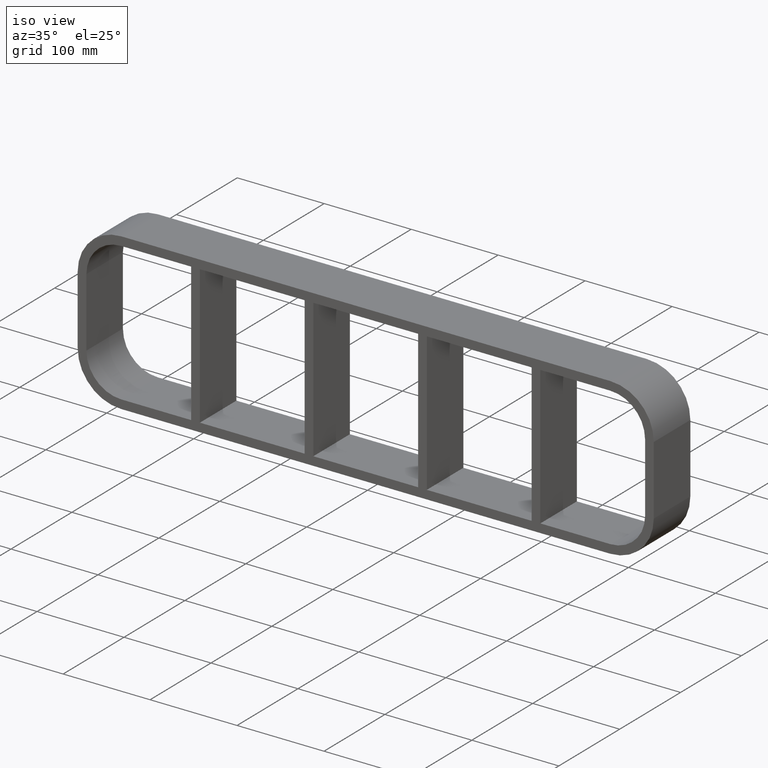
[diagram: clean part render]
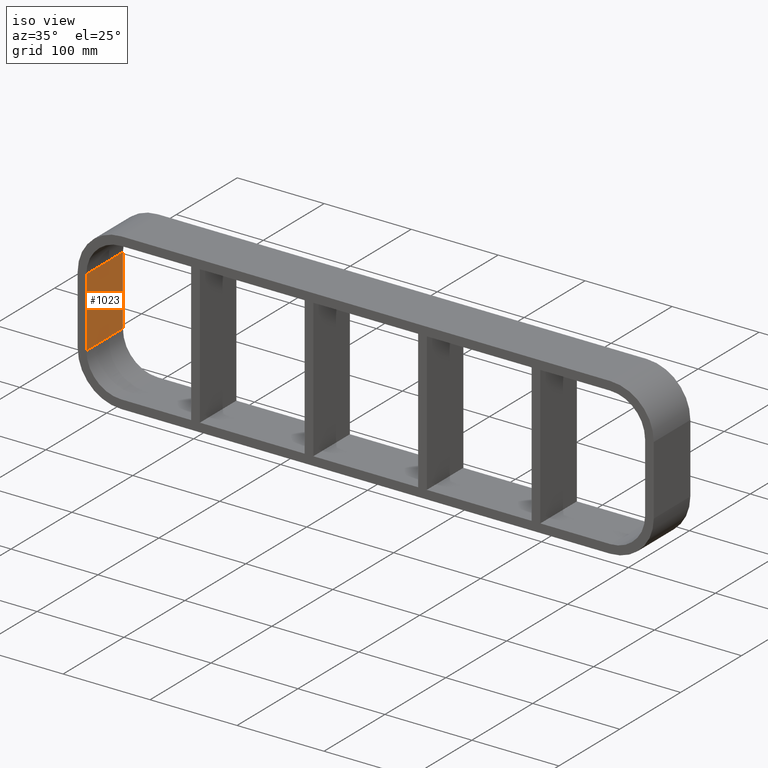
[diagram: same view with one face highlighted and labeled with its STEP entity id]
A machine part, iso view. The second image highlights one B-rep face of the part: STEP entity #1023.
In plain terms, the highlighted planar face has unit normal (-1, 0, 0).
Its self-contained STEP definition (entity closure, byte-faithful):
#770=CARTESIAN_POINT('',(-321.25,-3.0,-39.750000000000014));
#771=VERTEX_POINT('',#770);
#779=CARTESIAN_POINT('',(-321.25,-3.0,39.750000000000014));
#780=VERTEX_POINT('',#779);
#781=CARTESIAN_POINT('',(-321.25,-3.0,-39.750000000000014));
#782=DIRECTION('',(0.0,0.0,1.0));
#783=VECTOR('',#782,79.500000000000028);
#784=LINE('',#781,#783);
#785=EDGE_CURVE('',#771,#780,#784,.T.);
#981=CARTESIAN_POINT('',(-321.25,57.0,39.750000000000014));
#982=VERTEX_POINT('',#981);
#983=CARTESIAN_POINT('',(-321.25,-3.0,39.750000000000014));
#984=DIRECTION('',(0.0,1.0,0.0));
#985=VECTOR('',#984,60.0);
#986=LINE('',#983,#985);
#987=EDGE_CURVE('',#780,#982,#986,.T.);
#1000=CARTESIAN_POINT('',(-321.25,0.0,-79.750000000000014));
#1001=DIRECTION('',(-1.0,0.0,0.0));
#1002=DIRECTION('',(0.0,0.0,1.0));
#1003=AXIS2_PLACEMENT_3D('',#1000,#1001,#1002);
#1004=PLANE('',#1003);
#1005=ORIENTED_EDGE('',*,*,#987,.F.);
#1006=ORIENTED_EDGE('',*,*,#785,.F.);
#1007=CARTESIAN_POINT('',(-321.25,57.0,-39.750000000000014));
#1008=VERTEX_POINT('',#1007);
#1009=CARTESIAN_POINT('',(-321.25,57.0,-39.750000000000014));
#1010=DIRECTION('',(0.0,-1.0,0.0));
#1011=VECTOR('',#1010,60.0);
#1012=LINE('',#1009,#1011);
#1013=EDGE_CURVE('',#1008,#771,#1012,.T.);
#1014=ORIENTED_EDGE('',*,*,#1013,.F.);
#1015=CARTESIAN_POINT('',(-321.25,57.0,39.750000000000021));
#1016=DIRECTION('',(0.0,0.0,-1.0));
#1017=VECTOR('',#1016,79.500000000000028);
#1018=LINE('',#1015,#1017);
#1019=EDGE_CURVE('',#982,#1008,#1018,.T.);
#1020=ORIENTED_EDGE('',*,*,#1019,.F.);
#1021=EDGE_LOOP('',(#1005,#1006,#1014,#1020));
#1022=FACE_OUTER_BOUND('',#1021,.T.);
#1023=ADVANCED_FACE('',(#1022),#1004,.F.);